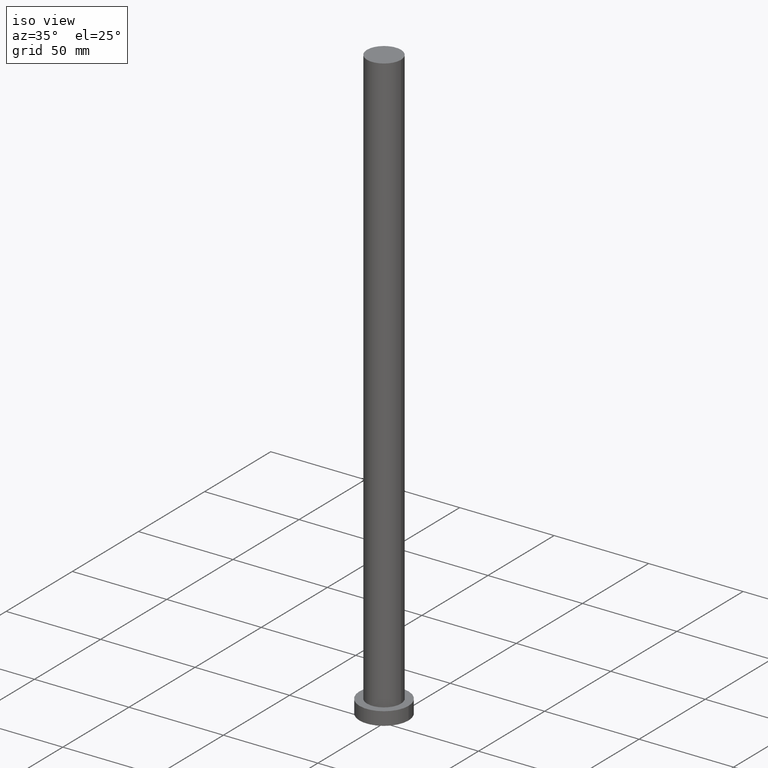
[diagram: clean part render]
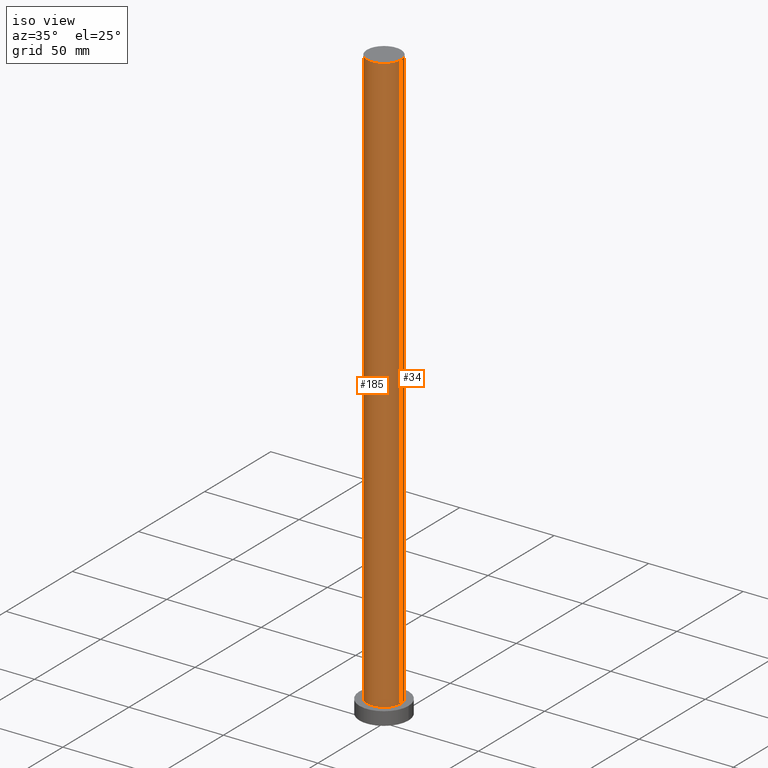
[diagram: same view with one multi-face feature highlighted, each face labeled with its STEP entity id]
A machine part, iso view. The highlighted faces form ONE feature: a constant-radius fillet chain: 2 tangent blend faces with common blend radius 9 mm. The faces share edges in the B-rep.
Their STEP definitions:
[1] entity #185 (Cylinder):
#4 = EDGE_CURVE ( 'NONE', #12, #50, #121, .T. ) ;
#5 = CARTESIAN_POINT ( 'NONE',  ( 0.000000000000000000, 0.000000000000000000, 7.000000000000000000 ) ) ;
#11 = CARTESIAN_POINT ( 'NONE',  ( 9.000000000000000000, 1.102182119232617714E-15, 315.0000000000000000 ) ) ;
#12 = VERTEX_POINT ( 'NONE', #238 ) ;
#29 = CYLINDRICAL_SURFACE ( 'NONE', #91, 9.000000000000000000 ) ;
#37 = ORIENTED_EDGE ( 'NONE', *, *, #204, .F. ) ;
#42 = AXIS2_PLACEMENT_3D ( 'NONE', #118, #76, #232 ) ;
#45 = LINE ( 'NONE', #11, #80 ) ;
#50 = VERTEX_POINT ( 'NONE', #111 ) ;
#53 = DIRECTION ( 'NONE',  ( -1.000000000000000000, 0.000000000000000000, 0.000000000000000000 ) ) ;
#64 = CIRCLE ( 'NONE', #168, 9.000000000000000000 ) ;
#66 = CARTESIAN_POINT ( 'NONE',  ( -9.000000000000000000, 0.000000000000000000, 315.0000000000000000 ) ) ;
#68 = CARTESIAN_POINT ( 'NONE',  ( 9.000000000000000000, 1.102182119232617714E-15, 315.0000000000000000 ) ) ;
#71 = VECTOR ( 'NONE', #84, 1000.000000000000000 ) ;
#73 = DIRECTION ( 'NONE',  ( -0.000000000000000000, -0.000000000000000000, -1.000000000000000000 ) ) ;
#76 = DIRECTION ( 'NONE',  ( 0.000000000000000000, 0.000000000000000000, 1.000000000000000000 ) ) ;
#80 = VECTOR ( 'NONE', #94, 1000.000000000000000 ) ;
#82 = VERTEX_POINT ( 'NONE', #205 ) ;
#84 = DIRECTION ( 'NONE',  ( -0.000000000000000000, -0.000000000000000000, -1.000000000000000000 ) ) ;
#91 = AXIS2_PLACEMENT_3D ( 'NONE', #115, #73, #53 ) ;
#94 = DIRECTION ( 'NONE',  ( -0.000000000000000000, -0.000000000000000000, -1.000000000000000000 ) ) ;
#100 = ORIENTED_EDGE ( 'NONE', *, *, #195, .T. ) ;
#111 = CARTESIAN_POINT ( 'NONE',  ( -9.000000000000000000, 0.000000000000000000, 7.000000000000000000 ) ) ;
#115 = CARTESIAN_POINT ( 'NONE',  ( 0.000000000000000000, 0.000000000000000000, 315.0000000000000000 ) ) ;
#118 = CARTESIAN_POINT ( 'NONE',  ( 0.000000000000000000, 0.000000000000000000, 315.0000000000000000 ) ) ;
#121 = LINE ( 'NONE', #66, #71 ) ;
#131 = DIRECTION ( 'NONE',  ( 1.000000000000000000, 0.000000000000000000, 0.000000000000000000 ) ) ;
#161 = DIRECTION ( 'NONE',  ( 0.000000000000000000, 0.000000000000000000, 1.000000000000000000 ) ) ;
#162 = FACE_OUTER_BOUND ( 'NONE', #209, .T. ) ;
#168 = AXIS2_PLACEMENT_3D ( 'NONE', #5, #161, #131 ) ;
#173 = CIRCLE ( 'NONE', #42, 9.000000000000000000 ) ;
#185 = ADVANCED_FACE ( 'NONE', ( #162 ), #29, .T. ) ;
#189 = VERTEX_POINT ( 'NONE', #68 ) ;
#194 = ORIENTED_EDGE ( 'NONE', *, *, #252, .F. ) ;
#195 = EDGE_CURVE ( 'NONE', #50, #82, #64, .T. ) ;
#204 = EDGE_CURVE ( 'NONE', #189, #82, #45, .T. ) ;
#205 = CARTESIAN_POINT ( 'NONE',  ( 9.000000000000000000, 1.102182119232617714E-15, 7.000000000000000000 ) ) ;
#209 = EDGE_LOOP ( 'NONE', ( #37, #194, #216, #100 ) ) ;
#216 = ORIENTED_EDGE ( 'NONE', *, *, #4, .T. ) ;
#232 = DIRECTION ( 'NONE',  ( 1.000000000000000000, 0.000000000000000000, 0.000000000000000000 ) ) ;
#238 = CARTESIAN_POINT ( 'NONE',  ( -9.000000000000000000, 0.000000000000000000, 315.0000000000000000 ) ) ;
#252 = EDGE_CURVE ( 'NONE', #12, #189, #173, .T. ) ;
[2] entity #34 (Cylinder):
#2 = CARTESIAN_POINT ( 'NONE',  ( 0.000000000000000000, 0.000000000000000000, 315.0000000000000000 ) ) ;
#4 = EDGE_CURVE ( 'NONE', #12, #50, #121, .T. ) ;
#11 = CARTESIAN_POINT ( 'NONE',  ( 9.000000000000000000, 1.102182119232617714E-15, 315.0000000000000000 ) ) ;
#12 = VERTEX_POINT ( 'NONE', #238 ) ;
#13 = AXIS2_PLACEMENT_3D ( 'NONE', #117, #249, #186 ) ;
#24 = CYLINDRICAL_SURFACE ( 'NONE', #60, 9.000000000000000000 ) ;
#34 = ADVANCED_FACE ( 'NONE', ( #202 ), #24, .T. ) ;
#39 = DIRECTION ( 'NONE',  ( 0.000000000000000000, 0.000000000000000000, 1.000000000000000000 ) ) ;
#45 = LINE ( 'NONE', #11, #80 ) ;
#46 = ORIENTED_EDGE ( 'NONE', *, *, #4, .F. ) ;
#47 = EDGE_CURVE ( 'NONE', #189, #12, #160, .T. ) ;
#50 = VERTEX_POINT ( 'NONE', #111 ) ;
#60 = AXIS2_PLACEMENT_3D ( 'NONE', #2, #196, #104 ) ;
#66 = CARTESIAN_POINT ( 'NONE',  ( -9.000000000000000000, 0.000000000000000000, 315.0000000000000000 ) ) ;
#68 = CARTESIAN_POINT ( 'NONE',  ( 9.000000000000000000, 1.102182119232617714E-15, 315.0000000000000000 ) ) ;
#71 = VECTOR ( 'NONE', #84, 1000.000000000000000 ) ;
#80 = VECTOR ( 'NONE', #94, 1000.000000000000000 ) ;
#82 = VERTEX_POINT ( 'NONE', #205 ) ;
#84 = DIRECTION ( 'NONE',  ( -0.000000000000000000, -0.000000000000000000, -1.000000000000000000 ) ) ;
#94 = DIRECTION ( 'NONE',  ( -0.000000000000000000, -0.000000000000000000, -1.000000000000000000 ) ) ;
#99 = EDGE_LOOP ( 'NONE', ( #215, #171, #174, #46 ) ) ;
#104 = DIRECTION ( 'NONE',  ( -1.000000000000000000, 0.000000000000000000, 0.000000000000000000 ) ) ;
#111 = CARTESIAN_POINT ( 'NONE',  ( -9.000000000000000000, 0.000000000000000000, 7.000000000000000000 ) ) ;
#117 = CARTESIAN_POINT ( 'NONE',  ( 0.000000000000000000, 0.000000000000000000, 7.000000000000000000 ) ) ;
#121 = LINE ( 'NONE', #66, #71 ) ;
#126 = EDGE_CURVE ( 'NONE', #82, #50, #210, .T. ) ;
#160 = CIRCLE ( 'NONE', #178, 9.000000000000000000 ) ;
#171 = ORIENTED_EDGE ( 'NONE', *, *, #204, .T. ) ;
#174 = ORIENTED_EDGE ( 'NONE', *, *, #126, .T. ) ;
#178 = AXIS2_PLACEMENT_3D ( 'NONE', #218, #39, #211 ) ;
#186 = DIRECTION ( 'NONE',  ( 1.000000000000000000, 0.000000000000000000, 0.000000000000000000 ) ) ;
#189 = VERTEX_POINT ( 'NONE', #68 ) ;
#196 = DIRECTION ( 'NONE',  ( -0.000000000000000000, -0.000000000000000000, -1.000000000000000000 ) ) ;
#202 = FACE_OUTER_BOUND ( 'NONE', #99, .T. ) ;
#204 = EDGE_CURVE ( 'NONE', #189, #82, #45, .T. ) ;
#205 = CARTESIAN_POINT ( 'NONE',  ( 9.000000000000000000, 1.102182119232617714E-15, 7.000000000000000000 ) ) ;
#210 = CIRCLE ( 'NONE', #13, 9.000000000000000000 ) ;
#211 = DIRECTION ( 'NONE',  ( 1.000000000000000000, 0.000000000000000000, 0.000000000000000000 ) ) ;
#215 = ORIENTED_EDGE ( 'NONE', *, *, #47, .F. ) ;
#218 = CARTESIAN_POINT ( 'NONE',  ( 0.000000000000000000, 0.000000000000000000, 315.0000000000000000 ) ) ;
#238 = CARTESIAN_POINT ( 'NONE',  ( -9.000000000000000000, 0.000000000000000000, 315.0000000000000000 ) ) ;
#249 = DIRECTION ( 'NONE',  ( 0.000000000000000000, 0.000000000000000000, 1.000000000000000000 ) ) ;